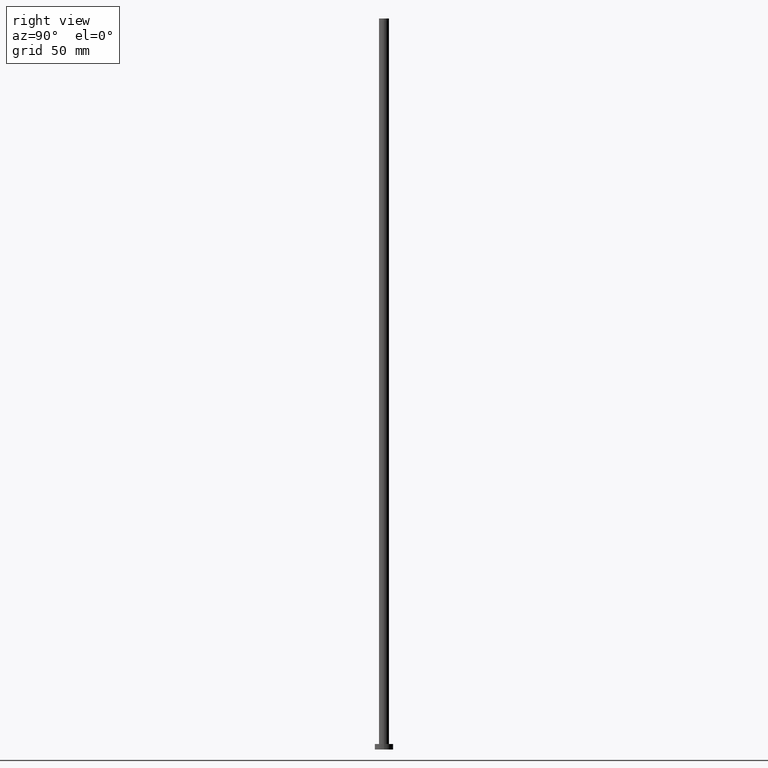
[diagram: clean part render]
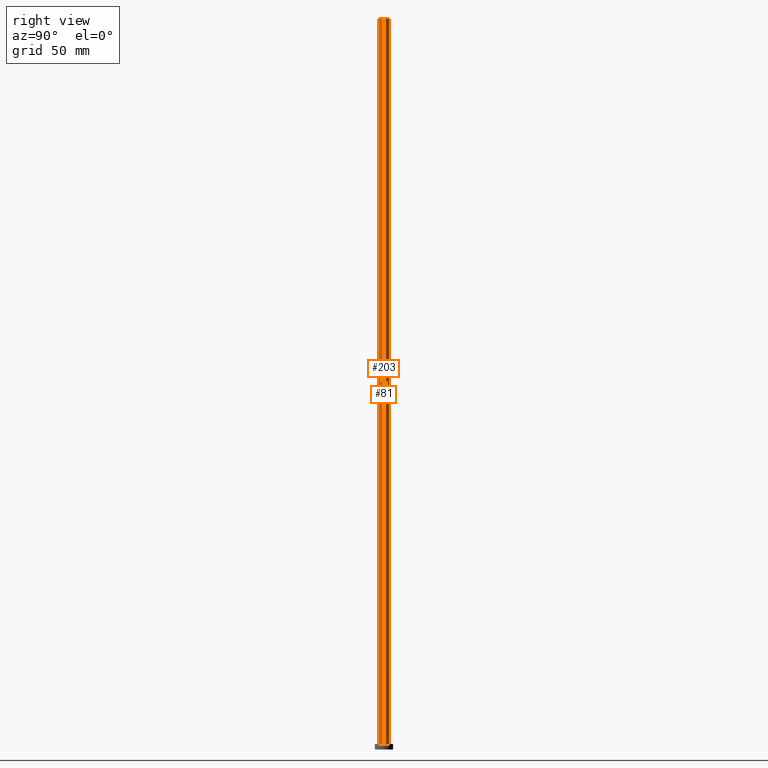
[diagram: same view with one multi-face feature highlighted, each face labeled with its STEP entity id]
A machine part, right view. The highlighted faces form ONE feature: a constant-radius fillet chain: 2 tangent blend faces with common blend radius 2.75 mm. The faces share edges in the B-rep.
Their STEP definitions:
[1] entity #203 (Cylinder):
#11 = VECTOR ( 'NONE', #160, 1000.000000000000000 ) ;
#31 = CYLINDRICAL_SURFACE ( 'NONE', #255, 2.750000000000000000 ) ;
#34 = DIRECTION ( 'NONE',  ( 1.000000000000000000, 0.000000000000000000, 0.000000000000000000 ) ) ;
#36 = CARTESIAN_POINT ( 'NONE',  ( 2.750000000000000000, 3.367778697655221012E-16, 400.0000000000000000 ) ) ;
#43 = AXIS2_PLACEMENT_3D ( 'NONE', #182, #245, #190 ) ;
#44 = EDGE_CURVE ( 'NONE', #139, #128, #239, .T. ) ;
#46 = ORIENTED_EDGE ( 'NONE', *, *, #115, .T. ) ;
#57 = CARTESIAN_POINT ( 'NONE',  ( 2.750000000000000000, 3.367778697655221012E-16, 400.0000000000000000 ) ) ;
#63 = EDGE_CURVE ( 'NONE', #128, #92, #157, .T. ) ;
#66 = VERTEX_POINT ( 'NONE', #232 ) ;
#75 = AXIS2_PLACEMENT_3D ( 'NONE', #172, #155, #34 ) ;
#83 = CIRCLE ( 'NONE', #43, 2.750000000000000000 ) ;
#91 = DIRECTION ( 'NONE',  ( -0.000000000000000000, -0.000000000000000000, -1.000000000000000000 ) ) ;
#92 = VERTEX_POINT ( 'NONE', #168 ) ;
#98 = EDGE_LOOP ( 'NONE', ( #184, #218, #46, #236 ) ) ;
#109 = CARTESIAN_POINT ( 'NONE',  ( 0.000000000000000000, 0.000000000000000000, 400.0000000000000000 ) ) ;
#114 = FACE_OUTER_BOUND ( 'NONE', #98, .T. ) ;
#115 = EDGE_CURVE ( 'NONE', #139, #66, #252, .T. ) ;
#127 = CARTESIAN_POINT ( 'NONE',  ( -2.750000000000000000, 0.000000000000000000, 400.0000000000000000 ) ) ;
#128 = VERTEX_POINT ( 'NONE', #57 ) ;
#139 = VERTEX_POINT ( 'NONE', #127 ) ;
#143 = EDGE_CURVE ( 'NONE', #66, #92, #83, .T. ) ;
#155 = DIRECTION ( 'NONE',  ( 0.000000000000000000, 0.000000000000000000, 1.000000000000000000 ) ) ;
#157 = LINE ( 'NONE', #36, #11 ) ;
#160 = DIRECTION ( 'NONE',  ( -0.000000000000000000, -0.000000000000000000, -1.000000000000000000 ) ) ;
#168 = CARTESIAN_POINT ( 'NONE',  ( 2.750000000000000000, 3.367778697655221012E-16, 3.000000000000000000 ) ) ;
#171 = DIRECTION ( 'NONE',  ( -1.000000000000000000, 0.000000000000000000, 0.000000000000000000 ) ) ;
#172 = CARTESIAN_POINT ( 'NONE',  ( 0.000000000000000000, 0.000000000000000000, 400.0000000000000000 ) ) ;
#182 = CARTESIAN_POINT ( 'NONE',  ( 0.000000000000000000, 0.000000000000000000, 3.000000000000000000 ) ) ;
#184 = ORIENTED_EDGE ( 'NONE', *, *, #63, .F. ) ;
#190 = DIRECTION ( 'NONE',  ( 1.000000000000000000, 0.000000000000000000, 0.000000000000000000 ) ) ;
#191 = VECTOR ( 'NONE', #209, 1000.000000000000000 ) ;
#203 = ADVANCED_FACE ( 'NONE', ( #114 ), #31, .T. ) ;
#209 = DIRECTION ( 'NONE',  ( -0.000000000000000000, -0.000000000000000000, -1.000000000000000000 ) ) ;
#218 = ORIENTED_EDGE ( 'NONE', *, *, #44, .F. ) ;
#232 = CARTESIAN_POINT ( 'NONE',  ( -2.750000000000000000, 0.000000000000000000, 3.000000000000000000 ) ) ;
#236 = ORIENTED_EDGE ( 'NONE', *, *, #143, .T. ) ;
#239 = CIRCLE ( 'NONE', #75, 2.750000000000000000 ) ;
#244 = CARTESIAN_POINT ( 'NONE',  ( -2.750000000000000000, 0.000000000000000000, 400.0000000000000000 ) ) ;
#245 = DIRECTION ( 'NONE',  ( 0.000000000000000000, 0.000000000000000000, 1.000000000000000000 ) ) ;
#252 = LINE ( 'NONE', #244, #191 ) ;
#255 = AXIS2_PLACEMENT_3D ( 'NONE', #109, #91, #171 ) ;
[2] entity #81 (Cylinder):
#8 = DIRECTION ( 'NONE',  ( 0.000000000000000000, 0.000000000000000000, 1.000000000000000000 ) ) ;
#10 = DIRECTION ( 'NONE',  ( 1.000000000000000000, 0.000000000000000000, 0.000000000000000000 ) ) ;
#11 = VECTOR ( 'NONE', #160, 1000.000000000000000 ) ;
#16 = FACE_OUTER_BOUND ( 'NONE', #208, .T. ) ;
#36 = CARTESIAN_POINT ( 'NONE',  ( 2.750000000000000000, 3.367778697655221012E-16, 400.0000000000000000 ) ) ;
#41 = DIRECTION ( 'NONE',  ( -1.000000000000000000, 0.000000000000000000, 0.000000000000000000 ) ) ;
#52 = ORIENTED_EDGE ( 'NONE', *, *, #115, .F. ) ;
#57 = CARTESIAN_POINT ( 'NONE',  ( 2.750000000000000000, 3.367778697655221012E-16, 400.0000000000000000 ) ) ;
#63 = EDGE_CURVE ( 'NONE', #128, #92, #157, .T. ) ;
#66 = VERTEX_POINT ( 'NONE', #232 ) ;
#79 = CARTESIAN_POINT ( 'NONE',  ( 0.000000000000000000, 0.000000000000000000, 400.0000000000000000 ) ) ;
#81 = ADVANCED_FACE ( 'NONE', ( #16 ), #174, .T. ) ;
#90 = EDGE_CURVE ( 'NONE', #128, #139, #204, .T. ) ;
#92 = VERTEX_POINT ( 'NONE', #168 ) ;
#115 = EDGE_CURVE ( 'NONE', #139, #66, #252, .T. ) ;
#116 = DIRECTION ( 'NONE',  ( -0.000000000000000000, -0.000000000000000000, -1.000000000000000000 ) ) ;
#117 = CIRCLE ( 'NONE', #226, 2.750000000000000000 ) ;
#125 = CARTESIAN_POINT ( 'NONE',  ( 0.000000000000000000, 0.000000000000000000, 3.000000000000000000 ) ) ;
#127 = CARTESIAN_POINT ( 'NONE',  ( -2.750000000000000000, 0.000000000000000000, 400.0000000000000000 ) ) ;
#128 = VERTEX_POINT ( 'NONE', #57 ) ;
#139 = VERTEX_POINT ( 'NONE', #127 ) ;
#145 = ORIENTED_EDGE ( 'NONE', *, *, #150, .T. ) ;
#150 = EDGE_CURVE ( 'NONE', #92, #66, #117, .T. ) ;
#157 = LINE ( 'NONE', #36, #11 ) ;
#160 = DIRECTION ( 'NONE',  ( -0.000000000000000000, -0.000000000000000000, -1.000000000000000000 ) ) ;
#168 = CARTESIAN_POINT ( 'NONE',  ( 2.750000000000000000, 3.367778697655221012E-16, 3.000000000000000000 ) ) ;
#174 = CYLINDRICAL_SURFACE ( 'NONE', #250, 2.750000000000000000 ) ;
#185 = DIRECTION ( 'NONE',  ( 0.000000000000000000, 0.000000000000000000, 1.000000000000000000 ) ) ;
#191 = VECTOR ( 'NONE', #209, 1000.000000000000000 ) ;
#198 = AXIS2_PLACEMENT_3D ( 'NONE', #79, #8, #230 ) ;
#204 = CIRCLE ( 'NONE', #198, 2.750000000000000000 ) ;
#208 = EDGE_LOOP ( 'NONE', ( #240, #251, #145, #52 ) ) ;
#209 = DIRECTION ( 'NONE',  ( -0.000000000000000000, -0.000000000000000000, -1.000000000000000000 ) ) ;
#226 = AXIS2_PLACEMENT_3D ( 'NONE', #125, #185, #10 ) ;
#230 = DIRECTION ( 'NONE',  ( 1.000000000000000000, 0.000000000000000000, 0.000000000000000000 ) ) ;
#231 = CARTESIAN_POINT ( 'NONE',  ( 0.000000000000000000, 0.000000000000000000, 400.0000000000000000 ) ) ;
#232 = CARTESIAN_POINT ( 'NONE',  ( -2.750000000000000000, 0.000000000000000000, 3.000000000000000000 ) ) ;
#240 = ORIENTED_EDGE ( 'NONE', *, *, #90, .F. ) ;
#244 = CARTESIAN_POINT ( 'NONE',  ( -2.750000000000000000, 0.000000000000000000, 400.0000000000000000 ) ) ;
#250 = AXIS2_PLACEMENT_3D ( 'NONE', #231, #116, #41 ) ;
#251 = ORIENTED_EDGE ( 'NONE', *, *, #63, .T. ) ;
#252 = LINE ( 'NONE', #244, #191 ) ;